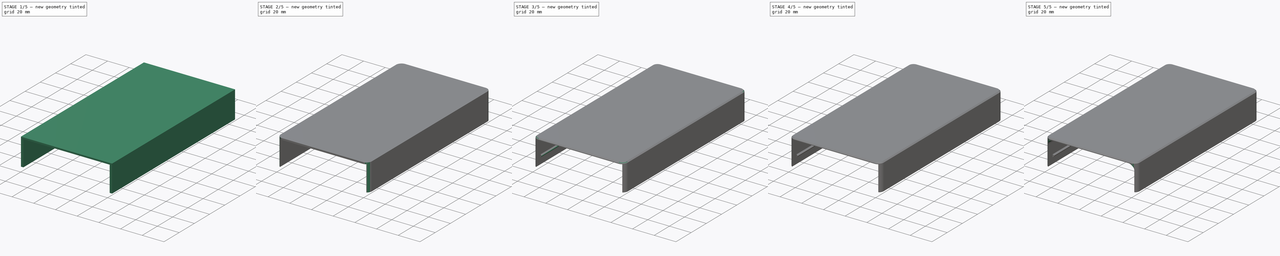
[diagram: build sequence overview — one tinted view per stage of 5, left to right]
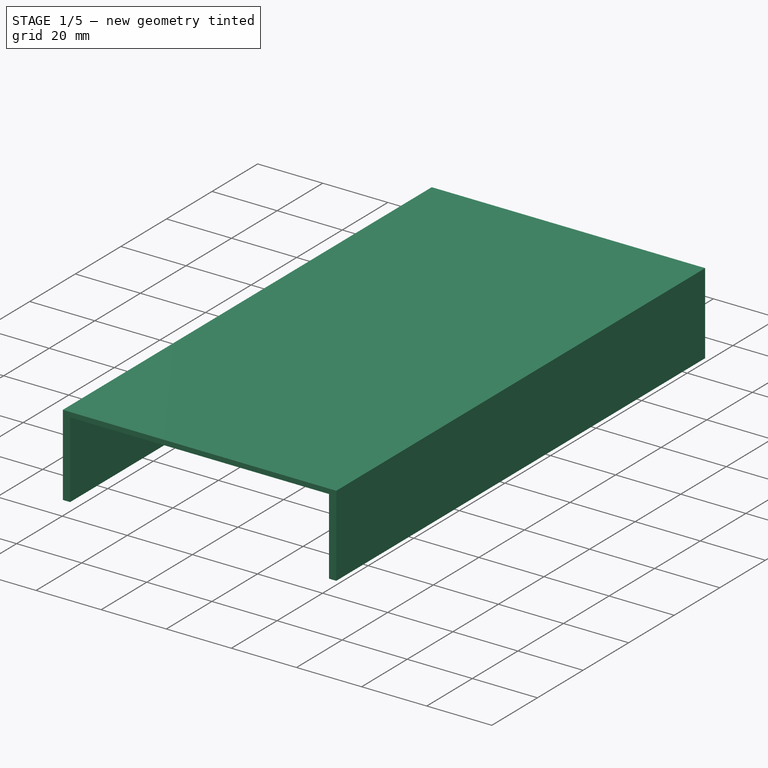
[diagram: stage 1 of 5 — iso view after this stage's code; geometry added in this stage tinted green]
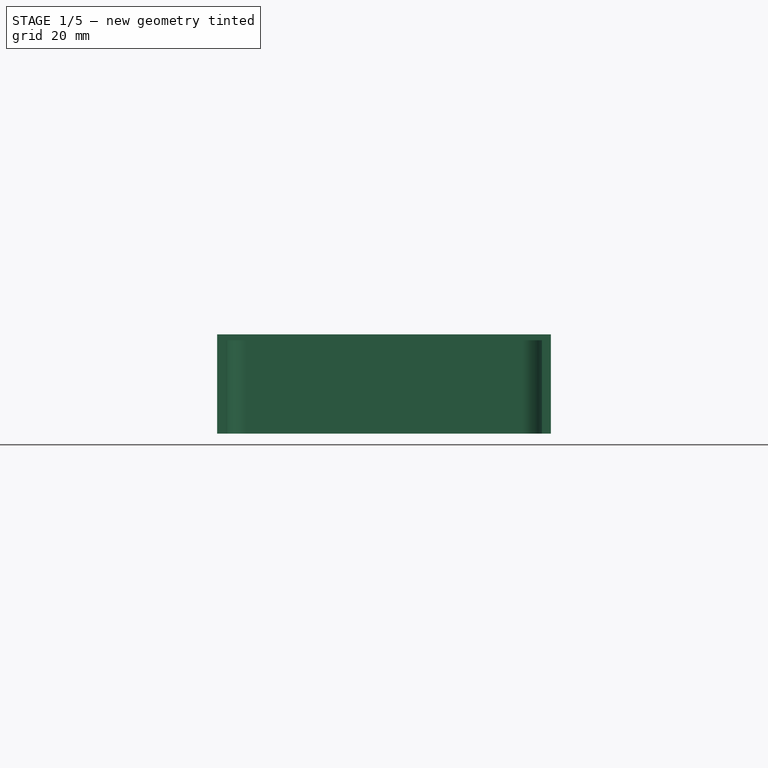
[diagram: stage 1 of 5 — front view after this stage's code; geometry added in this stage tinted green]
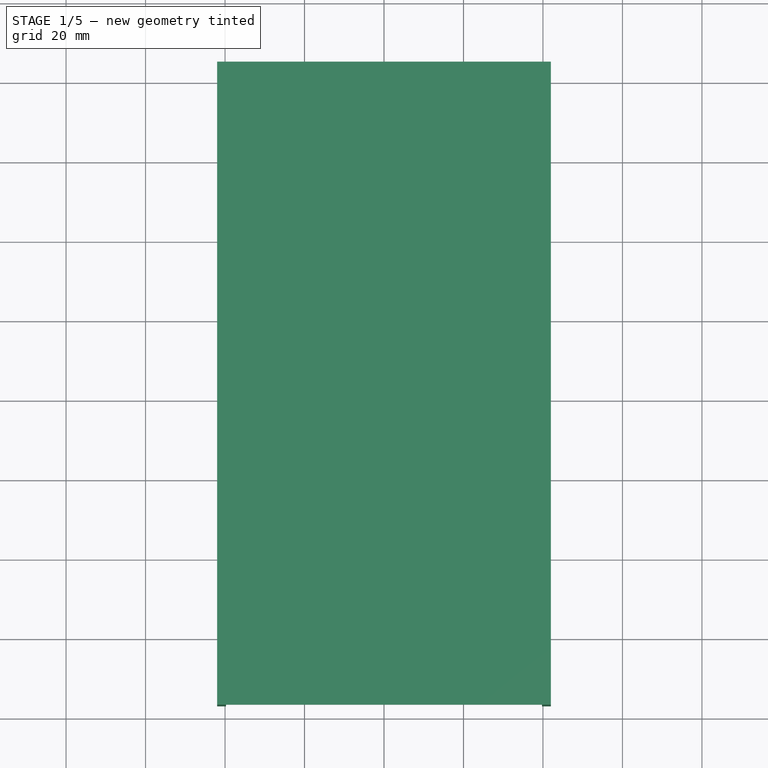
[diagram: stage 1 of 5 — top view after this stage's code; geometry added in this stage tinted green]
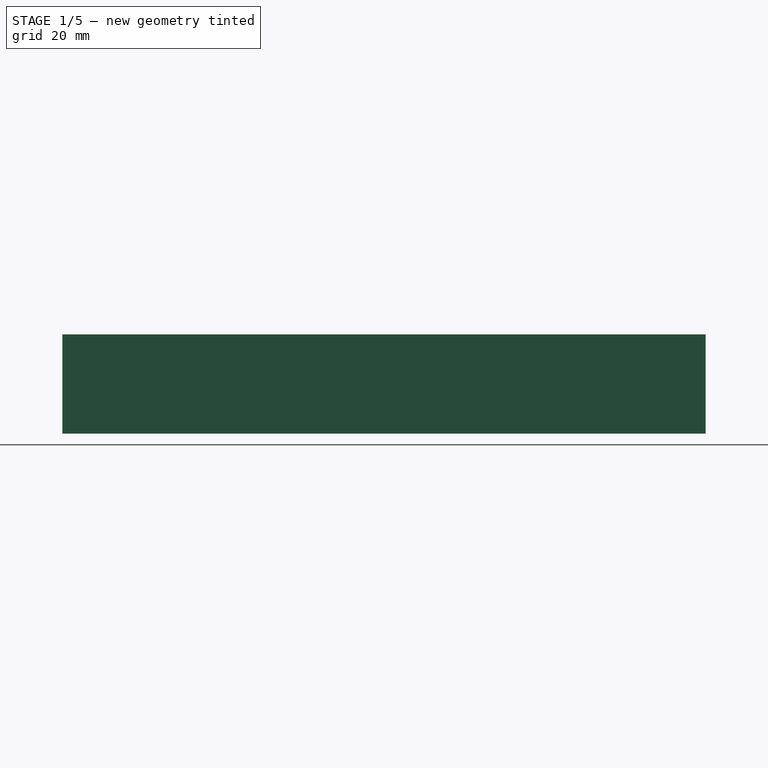
[diagram: stage 1 of 5 — right view after this stage's code; geometry added in this stage tinted green]
FCSTD DOCUMENT  (FreeCAD 0.19R)
Label: pocket265-cover
License: All rights reserved
LicenseURL: http://en.wikipedia.org/wiki/All_rights_reserved
objects: Sketcher::SketchObject×6, PartDesign::Fillet×5, PartDesign::Pocket×4, PartDesign::Mirrored×3, PartDesign::Pad×2, PartDesign::Chamfer×2, PartDesign::Body×1
note: 36 computed .brp shape members not serialized (recipe doc carries the construction recipe); baked Part::Feature solids carry a one-line shape summary decoded from their .brp

FEATURE [Sketcher::SketchObject] Sketch
  FullyConstrained = true
  MapMode = 5
  Support = -> [XY_Plane]
  sketch-geometry (4):
    g0: LineSegment StartX=-42 StartY=5 StartZ=0 EndX=42 EndY=5 EndZ=0
    g1: LineSegment StartX=42 StartY=5 StartZ=0 EndX=42 EndY=-156.85 EndZ=0
    g2: LineSegment StartX=42 StartY=-156.85 StartZ=0 EndX=-42 EndY=-156.85 EndZ=0
    g3: LineSegment StartX=-42 StartY=-156.85 StartZ=0 EndX=-42 EndY=5 EndZ=0
  constraints (11):
    c: Coincident(g0,g1)
    c: Coincident(g1,g2)
    c: Coincident(g2,g3)
    c: Coincident(g3,g0)
    c: Horizontal(g2)
    c: Vertical(g1)
    c: Vertical(g3)
    c: Symmetric(g0,g0,g-2)
    c: DistanceX(g0,g0) = 84
    c: DistanceY(g-1,g0) = 5
    c: DistanceY(g1,g-1) = 156.85
FEATURE [PartDesign::Pad] Pad
  Direction = (1,1,1)
  Length = 25
  Length2 = 100
  Profile = -> Sketch
  Type = 0
FEATURE [Sketcher::SketchObject] Sketch001
  ExternalGeometry = -> [Pad]
  FullyConstrained = true
  MapMode = 5
  Placement = pos=(0,0,0) rot=(1,0,0;3.14159rad)
  Support = -> [Pad]
  sketch-geometry (4):
    g0: LineSegment StartX=-39.75 StartY=156.85 StartZ=0 EndX=39.75 EndY=156.85 EndZ=0
    g1: LineSegment StartX=39.75 StartY=156.85 StartZ=0 EndX=39.75 EndY=0 EndZ=0
    g2: LineSegment StartX=39.75 StartY=0 StartZ=0 EndX=-39.75 EndY=0 EndZ=0
    g3: LineSegment StartX=-39.75 StartY=0 StartZ=0 EndX=-39.75 EndY=156.85 EndZ=0
  constraints (11):
    c: Coincident(g0,g1)
    c: Coincident(g1,g2)
    c: Coincident(g2,g3)
    c: Coincident(g3,g0)
    c: Horizontal(g0)
    c: Vertical(g1)
    c: Vertical(g3)
    c: PointOnObject(g0,g-3)
    c: PointOnObject(g1,g-1)
    c: Symmetric(g1,g2,g-2)
    c: DistanceX(g2,g2) = 79.5
FEATURE [PartDesign::Pocket] Pocket
  BaseFeature = -> Pad
  Length = 23.5
  Length2 = 100
  Profile = -> Sketch001
  Type = 0
FEATURE [PartDesign::Fillet] Fillet
  Base = -> Pocket [Edge22,Edge20]
  BaseFeature = -> Pocket
  Radius = 5
  SupportTransform = false
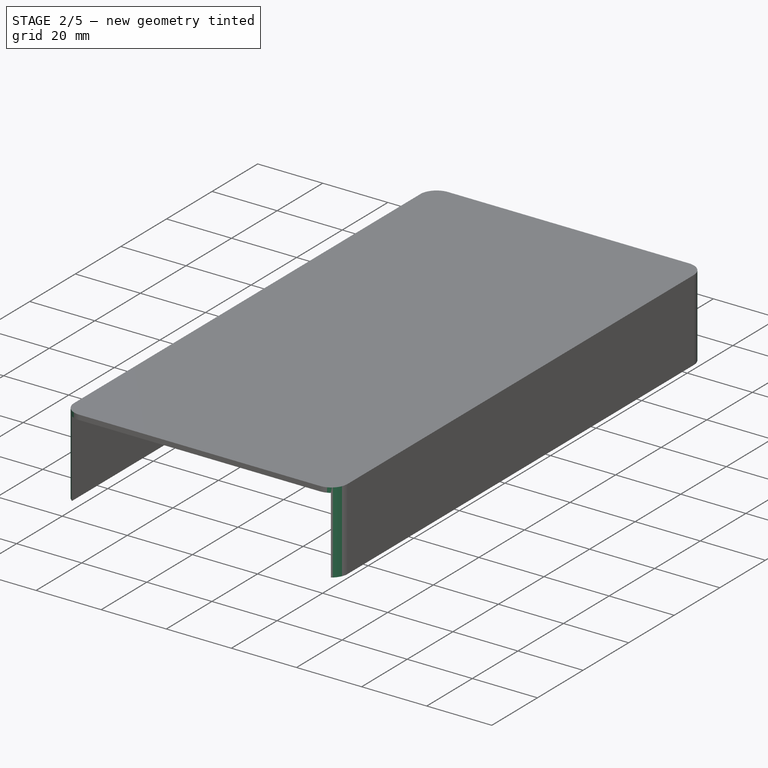
[diagram: stage 2 of 5 — iso view after this stage's code; geometry added in this stage tinted green]
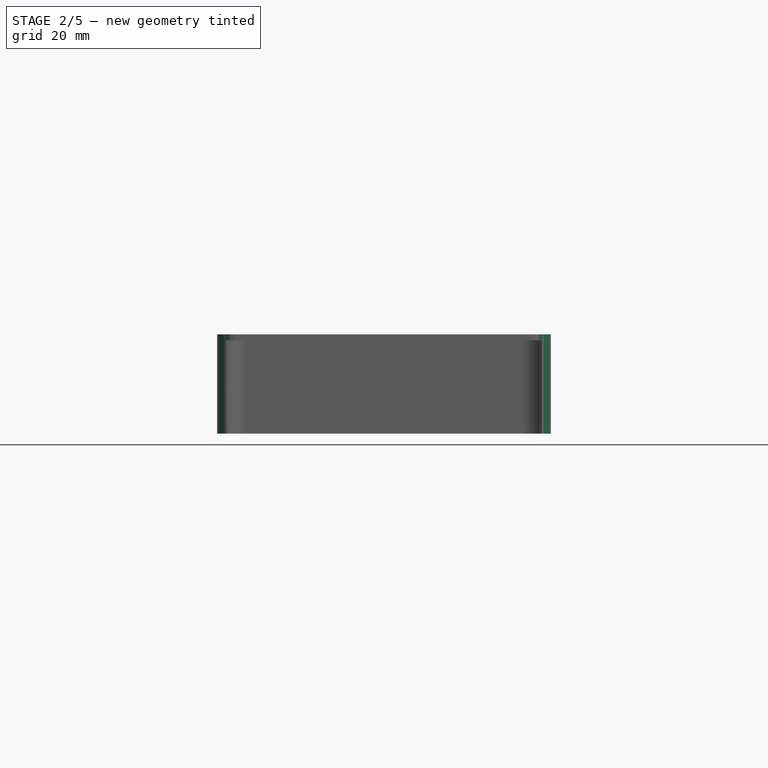
[diagram: stage 2 of 5 — front view after this stage's code; geometry added in this stage tinted green]
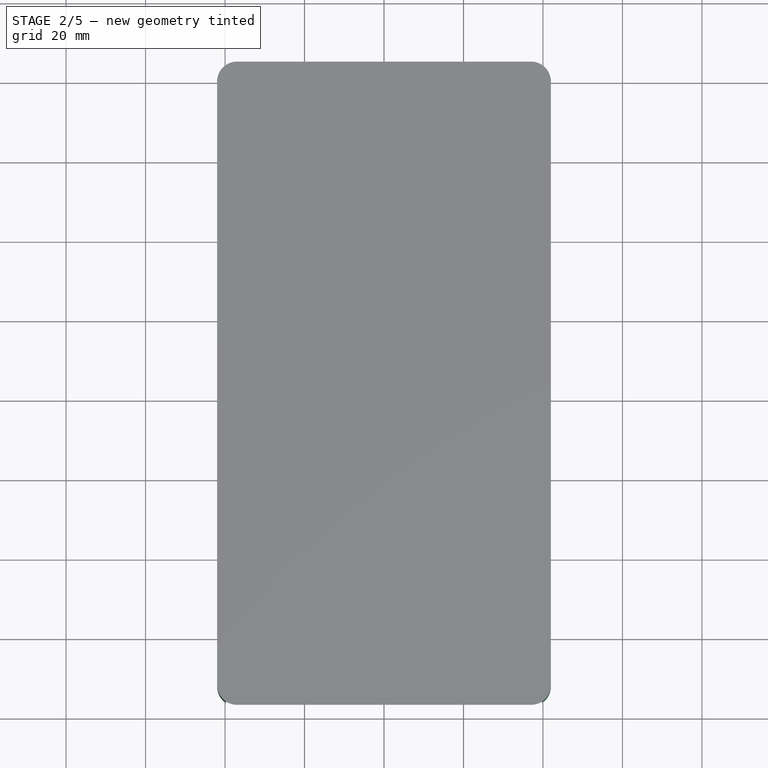
[diagram: stage 2 of 5 — top view after this stage's code; geometry added in this stage tinted green]
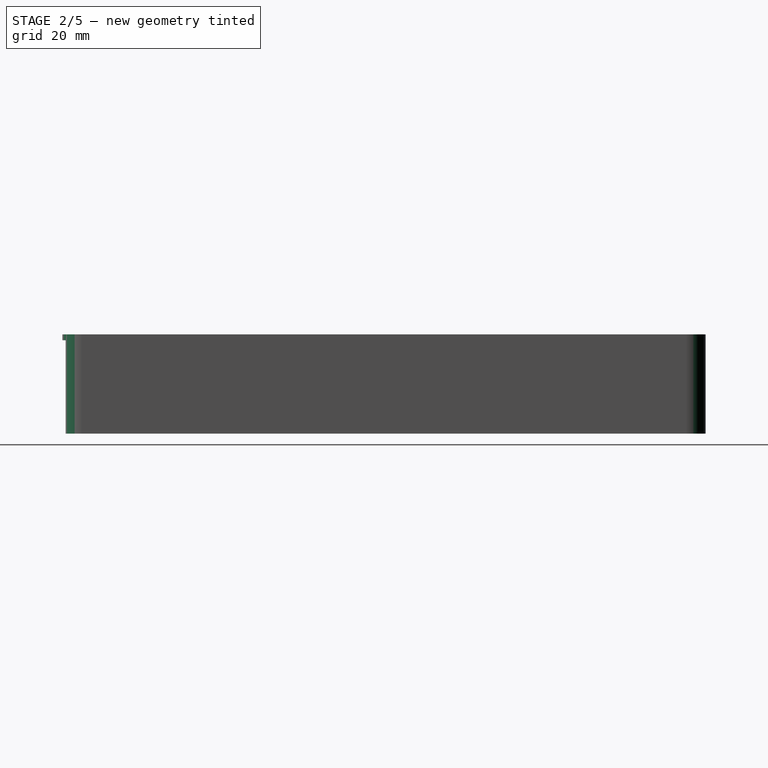
[diagram: stage 2 of 5 — right view after this stage's code; geometry added in this stage tinted green]
FEATURE [PartDesign::Fillet] Fillet001
  Base = -> Fillet [Edge27,Edge23]
  BaseFeature = -> Fillet
  Radius = 5
  SupportTransform = false
FEATURE [Sketcher::SketchObject] Sketch002
  ExternalGeometry = -> [Fillet001]
  FullyConstrained = true
  MapMode = 5
  Placement = pos=(0,0,25) rot=(0,0,1;0rad)
  Support = -> [Fillet001]
  sketch-geometry (4):
    g0: ArcOfCircle CenterX=-37 CenterY=-151.85 CenterZ=0 NormalX=0 NormalY=0 NormalZ=1 AngleXU=0 Radius=5 StartAngle=3.14159 EndAngle=4.71239
    g1: LineSegment StartX=-72.3552 StartY=-151.85 StartZ=0 EndX=-36.9999 EndY=-187.205 EndZ=0
    g2: LineSegment StartX=-36.9999 StartY=-187.205 StartZ=0 EndX=-37 EndY=-156.85 EndZ=0
    g3: LineSegment StartX=-72.3552 StartY=-151.85 StartZ=0 EndX=-42 EndY=-151.85 EndZ=0
  constraints (13):
    c: PointOnObject(g0,g-3)
    c: PointOnObject(g0,g-4)
    c: Tangent(g0,g-3)
    c: Tangent(g0,g-4)
    c: Radius(g0) = 5
    c: Coincident(g1,g2)
    c: Coincident(g2,g0)
    c: Coincident(g1,g3)
    c: Coincident(g3,g0)
    c: Equal(g2,g3)
    c: Distance(g1) = 50
    c: Perpendicular(g0,g2)
    c: Perpendicular(g0,g3)
FEATURE [PartDesign::Pocket] Pocket001
  BaseFeature = -> Fillet001
  Length = 5
  Length2 = 100
  Profile = -> Sketch002
  Type = 1
FEATURE [PartDesign::Mirrored] Mirrored
  BaseFeature = -> Pocket001
  MirrorPlane = -> Sketch002 [V_Axis]
  Originals = -> [Pocket001]
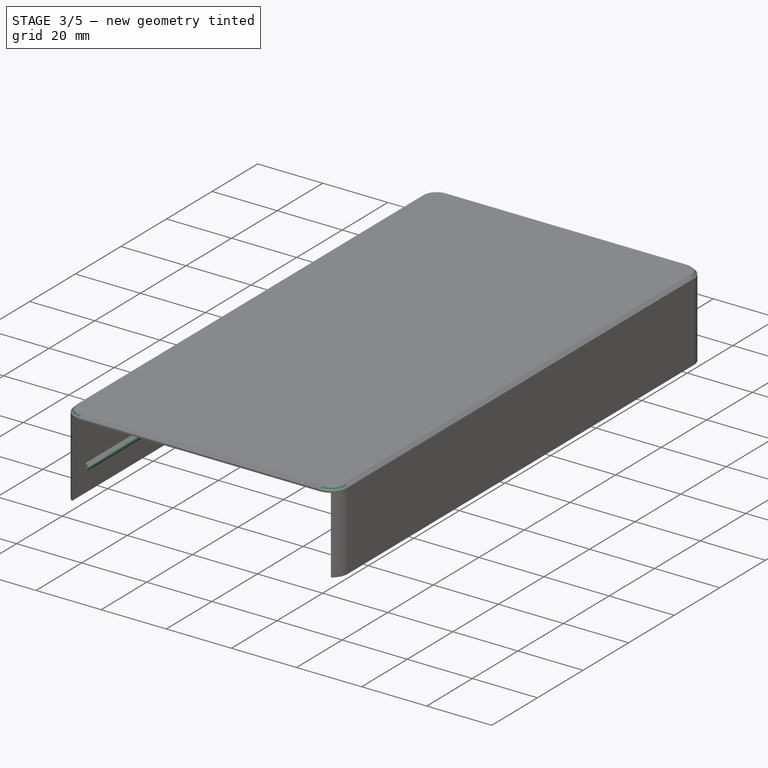
[diagram: stage 3 of 5 — iso view after this stage's code; geometry added in this stage tinted green]
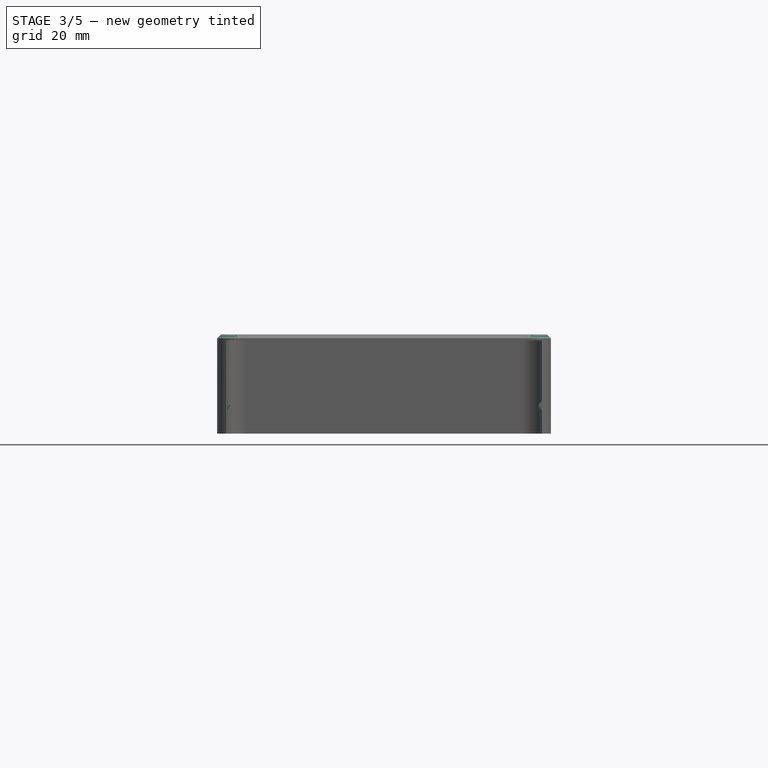
[diagram: stage 3 of 5 — front view after this stage's code; geometry added in this stage tinted green]
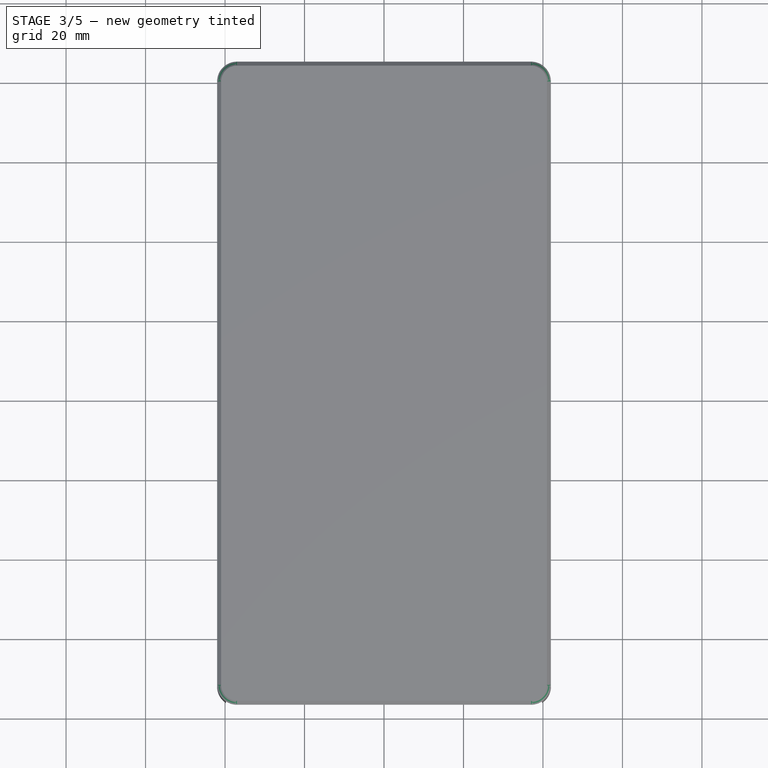
[diagram: stage 3 of 5 — top view after this stage's code; geometry added in this stage tinted green]
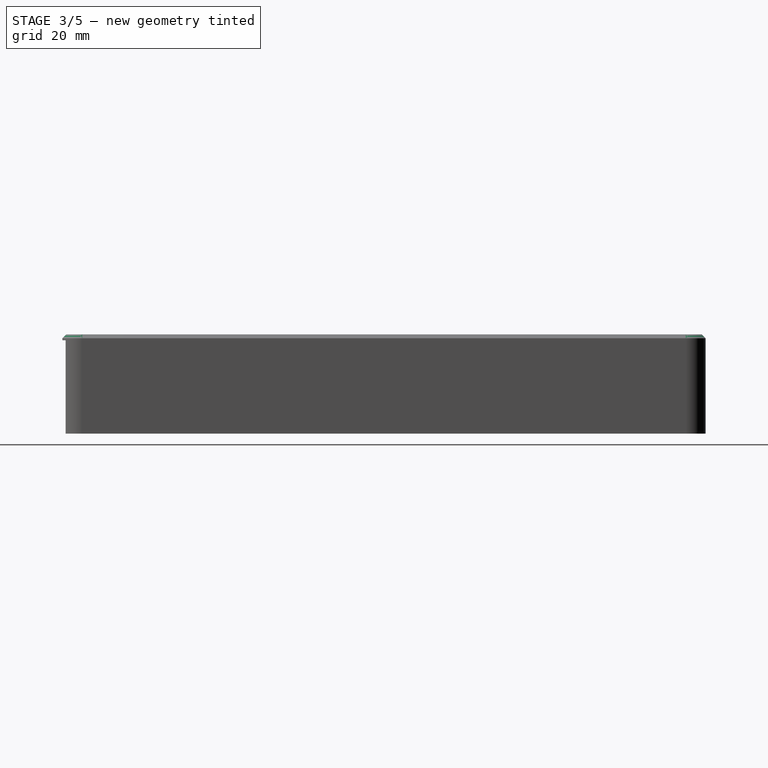
[diagram: stage 3 of 5 — right view after this stage's code; geometry added in this stage tinted green]
FEATURE [PartDesign::Chamfer] Chamfer
  Angle = 45
  Base = -> Mirrored [Edge28]
  BaseFeature = -> Mirrored
  ChamferType = 0
  FlipDirection = false
  Size = 1
  Size2 = 1
  SupportTransform = false
FEATURE [Sketcher::SketchObject] Sketch003
  ExternalGeometry = -> [Chamfer]
  FullyConstrained = true
  MapMode = 5
  Placement = pos=(0,0,0) rot=(1,0,0;1.5708rad)
  Support = -> [Chamfer]
  sketch-geometry (3):
    g0: LineSegment StartX=-39.75 StartY=8.25 StartZ=0 EndX=-38.5 EndY=7 EndZ=0
    g1: LineSegment StartX=-38.5 StartY=7 StartZ=0 EndX=-39.75 EndY=5.75 EndZ=0
    g2: LineSegment StartX=-39.75 StartY=5.75 StartZ=0 EndX=-39.75 EndY=8.25 EndZ=0
  constraints (9):
    c: PointOnObject(g0,g-3)
    c: Coincident(g0,g1)
    c: PointOnObject(g1,g-3)
    c: Coincident(g1,g2)
    c: Coincident(g2,g0)
    c: Equal(g0,g1)
    c: Angle(g0,g1) = 1.5708
    c: DistanceX(g0,g-1) = 38.5
    c: DistanceY(g-1,g0) = 7
FEATURE [PartDesign::Pad] Pad001
  BaseFeature = -> Chamfer
  Direction = (1,1,1)
  Length = 150
  Length2 = 100
  Profile = -> Sketch003
  Type = 0
FEATURE [PartDesign::Mirrored] Mirrored001
  BaseFeature = -> Pad001
  MirrorPlane = -> Sketch003 [V_Axis]
  Originals = -> [Pad001]
FEATURE [PartDesign::Fillet] Fillet002
  Base = -> Mirrored001 [Edge62,Edge74]
  BaseFeature = -> Mirrored001
  Radius = 0.5
  SupportTransform = false
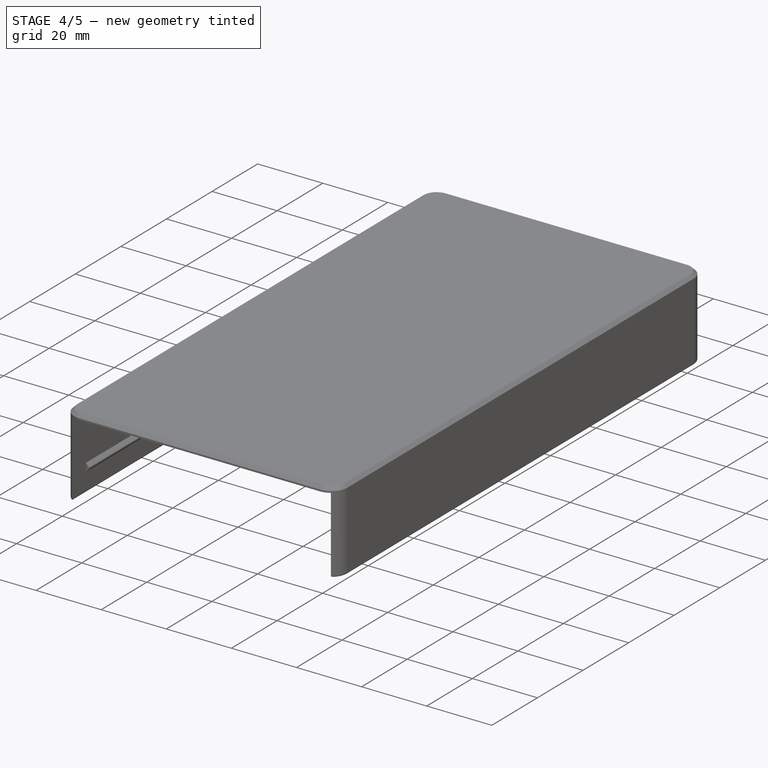
[diagram: stage 4 of 5 — iso view after this stage's code; geometry added in this stage tinted green]
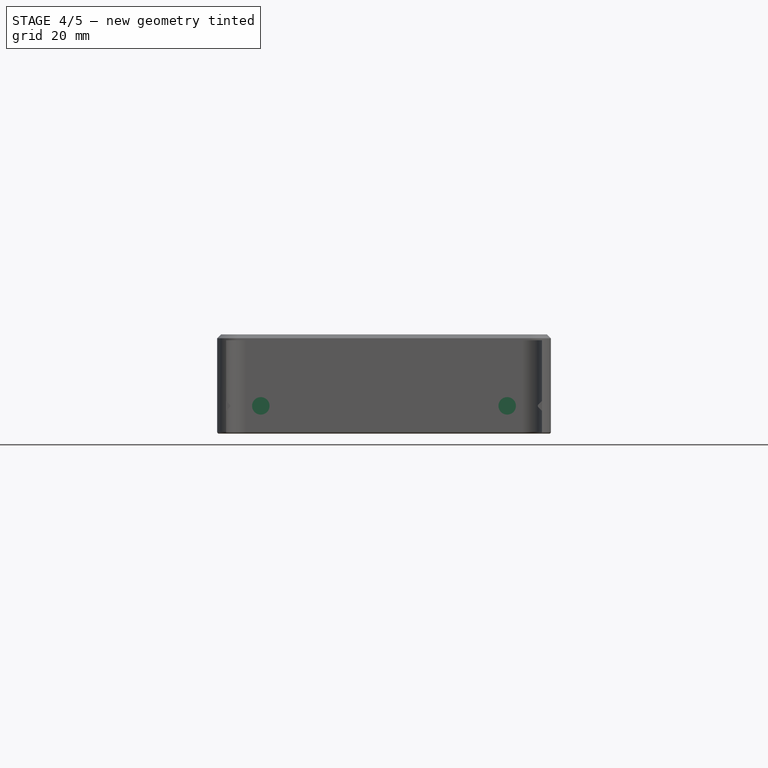
[diagram: stage 4 of 5 — front view after this stage's code; geometry added in this stage tinted green]
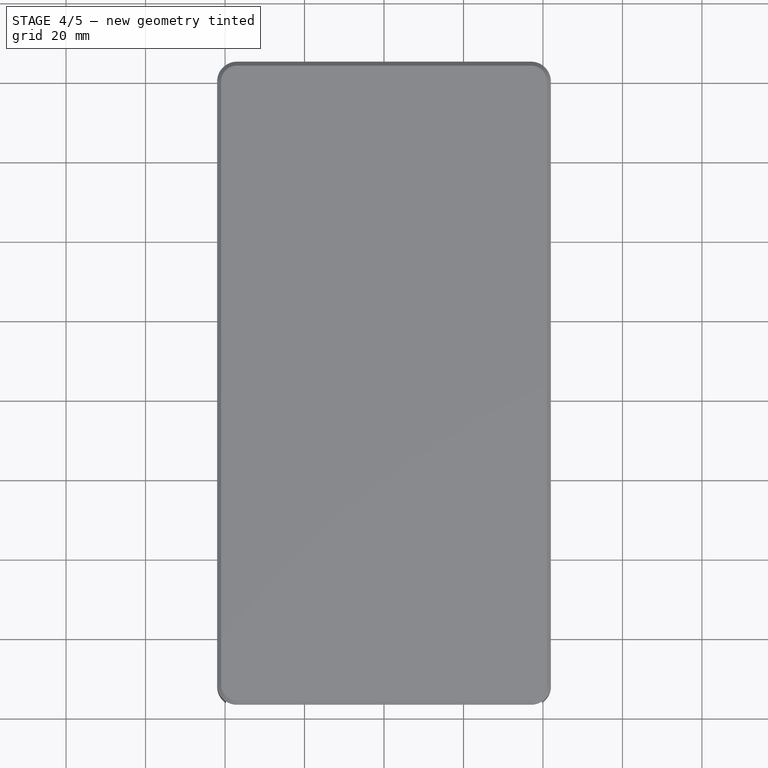
[diagram: stage 4 of 5 — top view after this stage's code; geometry added in this stage tinted green]
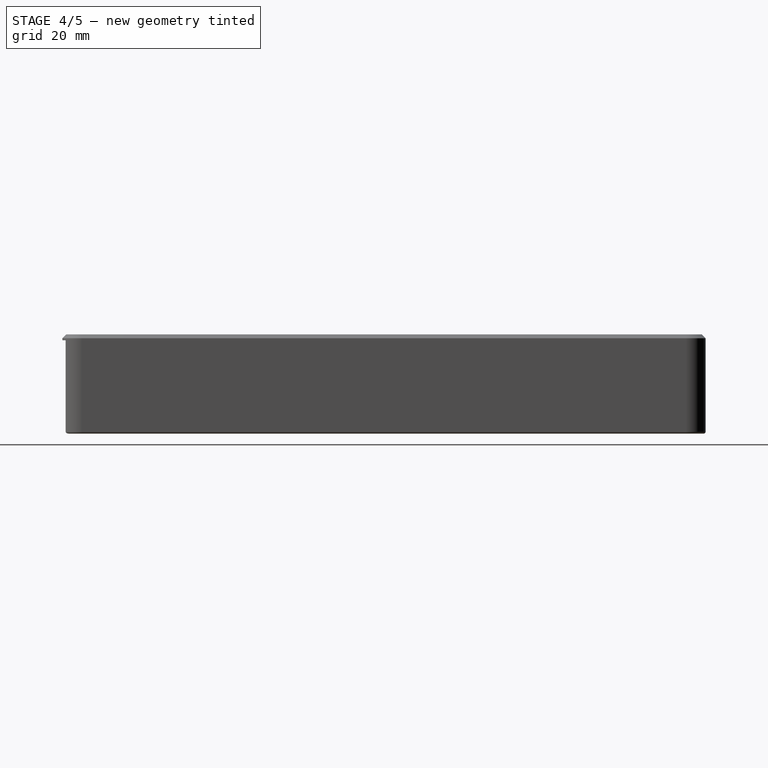
[diagram: stage 4 of 5 — right view after this stage's code; geometry added in this stage tinted green]
FEATURE [PartDesign::Fillet] Fillet003
  Base = -> Fillet002 [Edge5,Edge28]
  BaseFeature = -> Fillet002
  Radius = 0.5
  SupportTransform = false
FEATURE [Sketcher::SketchObject] Sketch004
  FullyConstrained = true
  MapMode = 5
  Placement = pos=(0,0,0) rot=(1,0,0;1.5708rad)
  Support = -> [Fillet003]
  sketch-geometry (1):
    g0: Circle CenterX=-31 CenterY=7 CenterZ=0 NormalX=0 NormalY=0 NormalZ=1 AngleXU=0 Radius=2.2
  constraints (3):
    c: Radius(g0) = 2.2
    c: DistanceX(g0,g-1) = 31
    c: DistanceY(g-1,g0) = 7
FEATURE [PartDesign::Pocket] Pocket002
  BaseFeature = -> Fillet003
  Length = 2.2
  Length2 = 100
  Profile = -> Sketch004
  Type = 0
FEATURE [PartDesign::Mirrored] Mirrored002
  BaseFeature = -> Pocket002
  MirrorPlane = -> Sketch004 [V_Axis]
  Originals = -> [Pocket002]
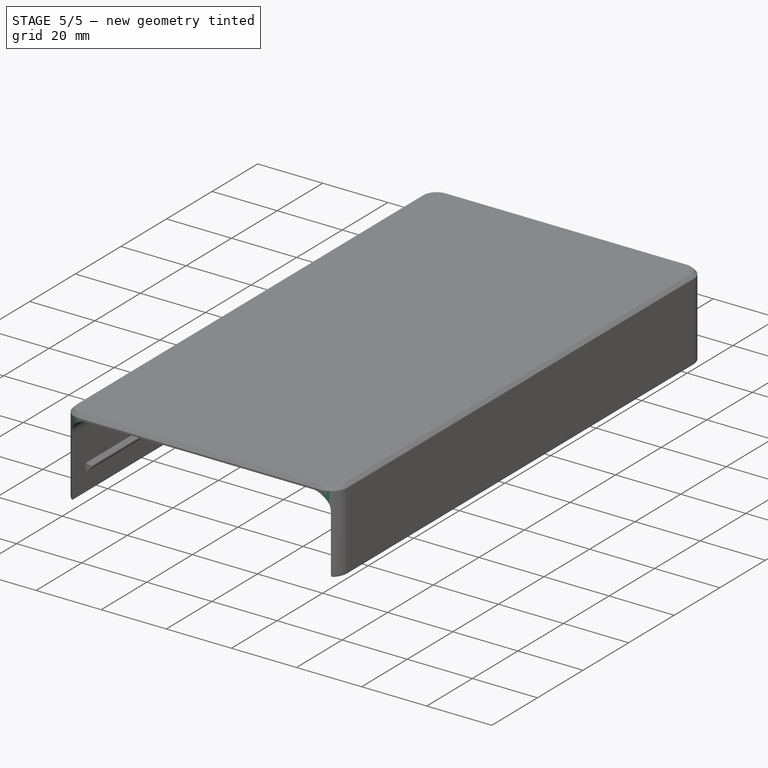
[diagram: stage 5 of 5 — iso view after this stage's code; geometry added in this stage tinted green]
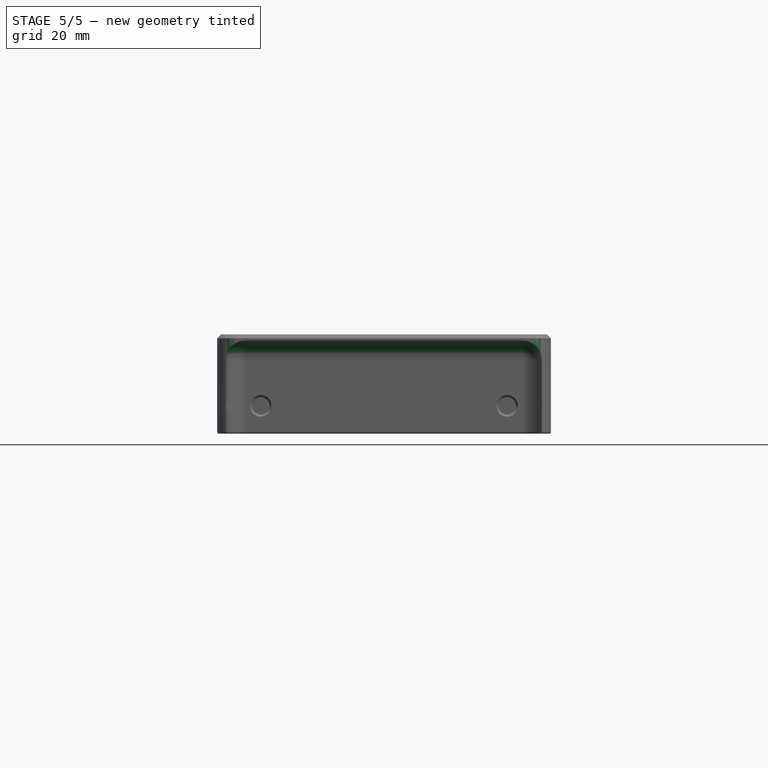
[diagram: stage 5 of 5 — front view after this stage's code; geometry added in this stage tinted green]
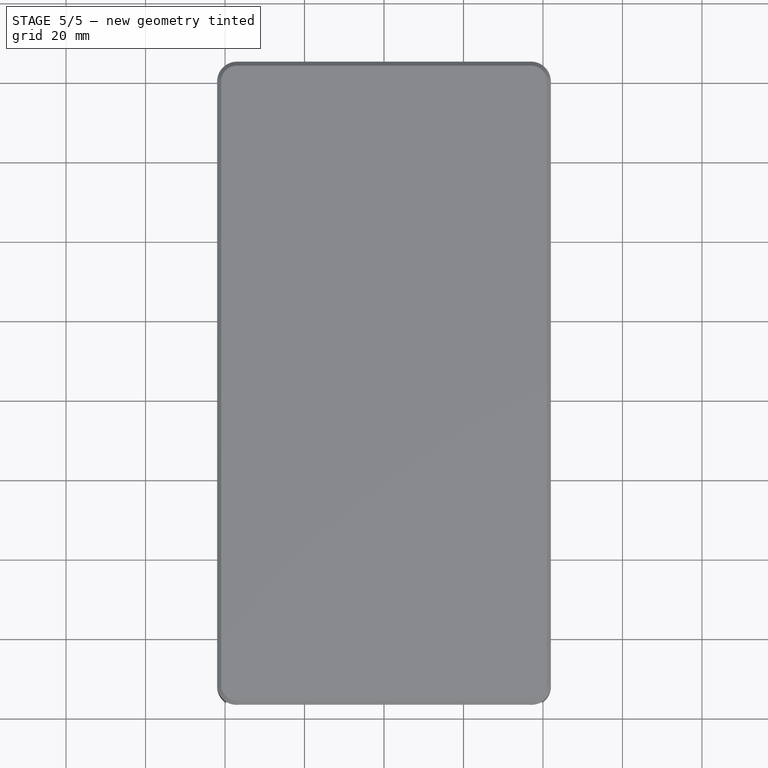
[diagram: stage 5 of 5 — top view after this stage's code; geometry added in this stage tinted green]
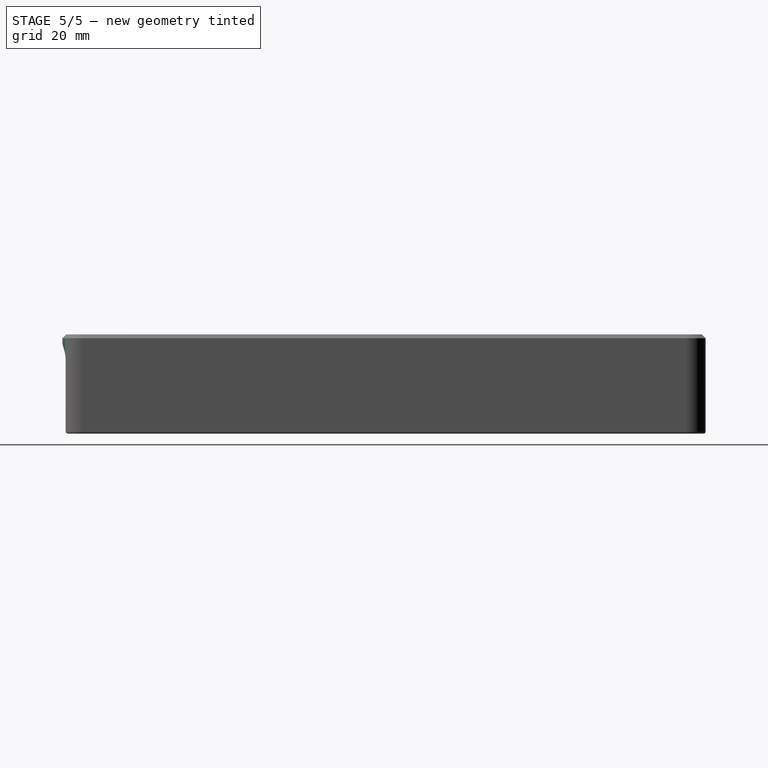
[diagram: stage 5 of 5 — right view after this stage's code; geometry added in this stage tinted green]
FEATURE [PartDesign::Chamfer] Chamfer001
  Angle = 45
  Base = -> Mirrored002 [Edge23,Edge24]
  BaseFeature = -> Mirrored002
  ChamferType = 0
  FlipDirection = false
  Size = 0.5
  Size2 = 1
  SupportTransform = false
FEATURE [Sketcher::SketchObject] Sketch005
  ExternalGeometry = -> [Chamfer001]
  FullyConstrained = true
  MapMode = 5
  Placement = pos=(0,0,0) rot=(1,0,0;3.14159rad)
  Support = -> [Chamfer001]
  sketch-geometry (4):
    g0: LineSegment StartX=39.75 StartY=150 StartZ=0 EndX=30 EndY=140.25 EndZ=0
    g1: LineSegment StartX=30 StartY=140.25 StartZ=0 EndX=-30 EndY=140.25 EndZ=0
    g2: LineSegment StartX=-30 StartY=140.25 StartZ=0 EndX=-39.75 EndY=150 EndZ=0
    g3: LineSegment StartX=-39.75 StartY=150 StartZ=0 EndX=39.75 EndY=150 EndZ=0
  constraints (10):
    c: Coincident(g-4,g0)
    c: Coincident(g0,g1)
    c: Horizontal(g1)
    c: Coincident(g1,g2)
    c: Coincident(g2,g-3)
    c: Coincident(g2,g3)
    c: Coincident(g3,g0)
    c: Equal(g2,g0)
    c: Angle(g3,g0) = 0.785398
    c: DistanceX(g1,g1) = 60
FEATURE [PartDesign::Pocket] Pocket003
  BaseFeature = -> Chamfer001
  Length = 10
  Length2 = 100
  Profile = -> Sketch005
  Type = 0
FEATURE [PartDesign::Fillet] Fillet004
  Base = -> Pocket003 [Edge13]
  BaseFeature = -> Pocket003
  Radius = 5
  SupportTransform = false
FEATURE [PartDesign::Body] Body
  Group = -> [Sketch,Pad,Sketch001,Pocket,Fillet,Fillet001,Sketch002,Pocket001,Mirrored,Chamfer,Sketch003,Pad001,Mirrored001,Fillet002,Fillet003,Sketch004,Pocket002,Mirrored002,Chamfer001,Sketch005,Pocket003,Fillet004]
  Origin = -> Origin
  Tip = -> Fillet004
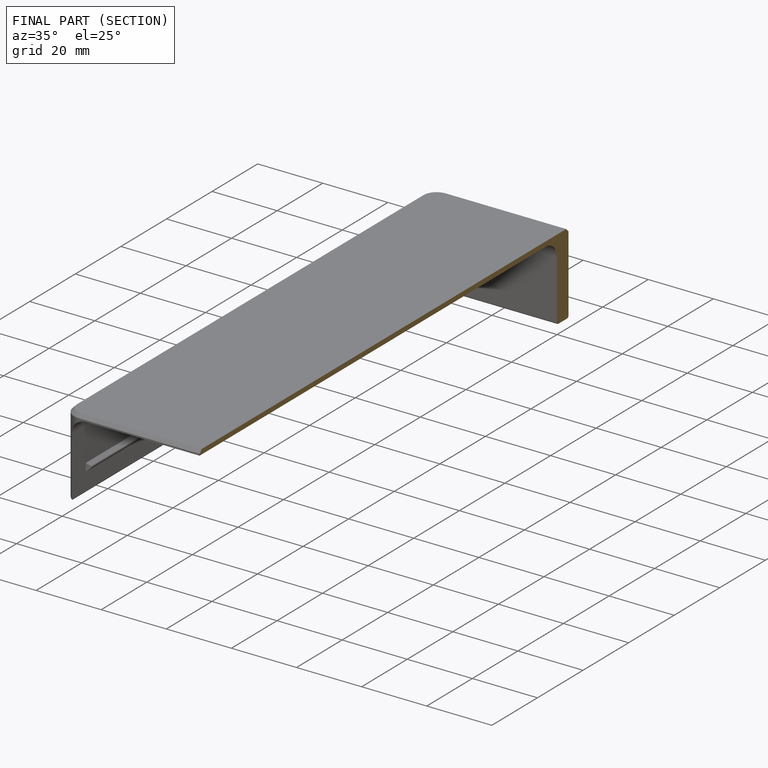
[diagram: finished part — half-section view (interior)]
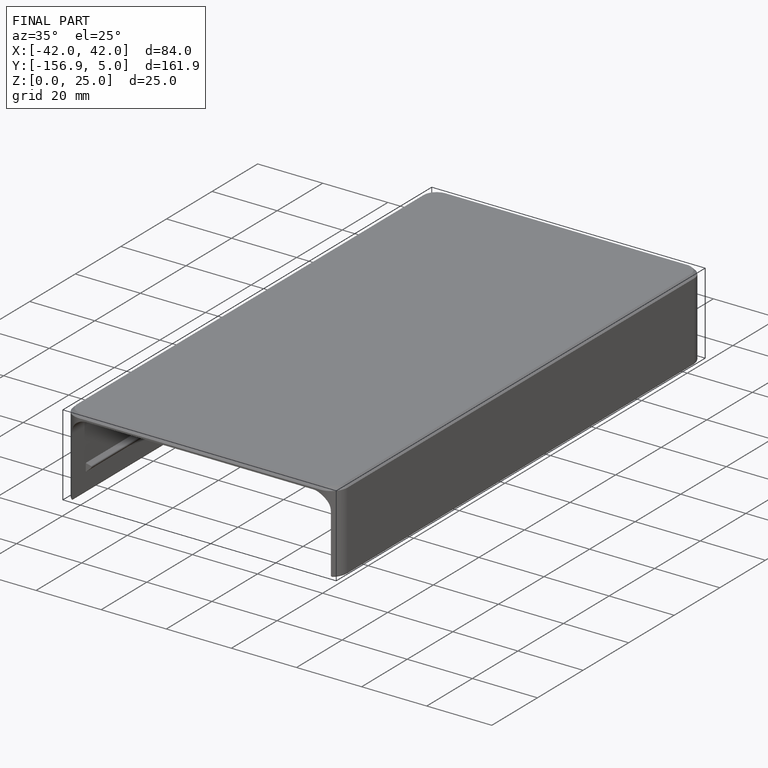
[diagram: finished part — iso view with bounding-box wireframe]
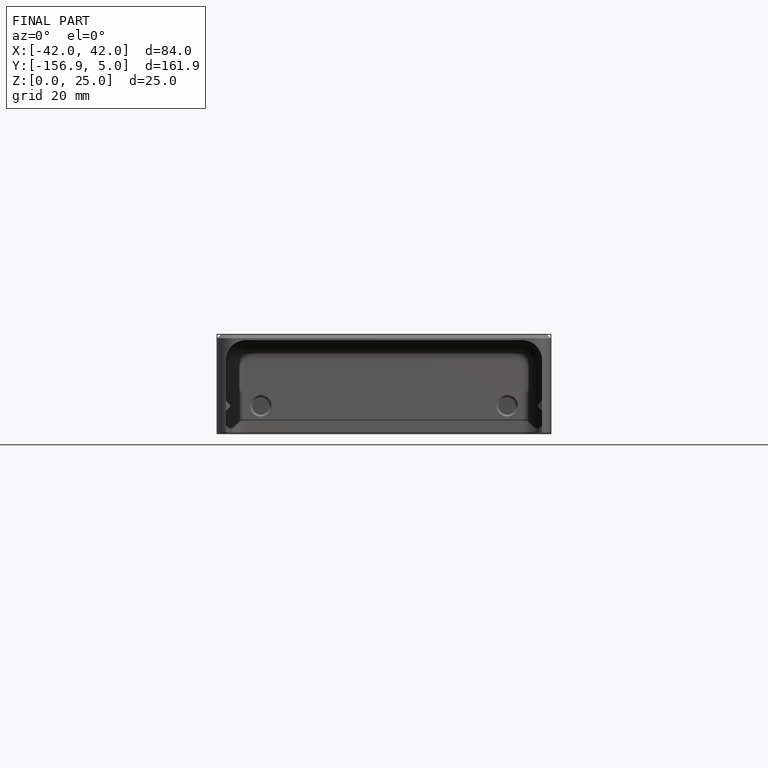
[diagram: finished part — front view with bounding-box wireframe]
